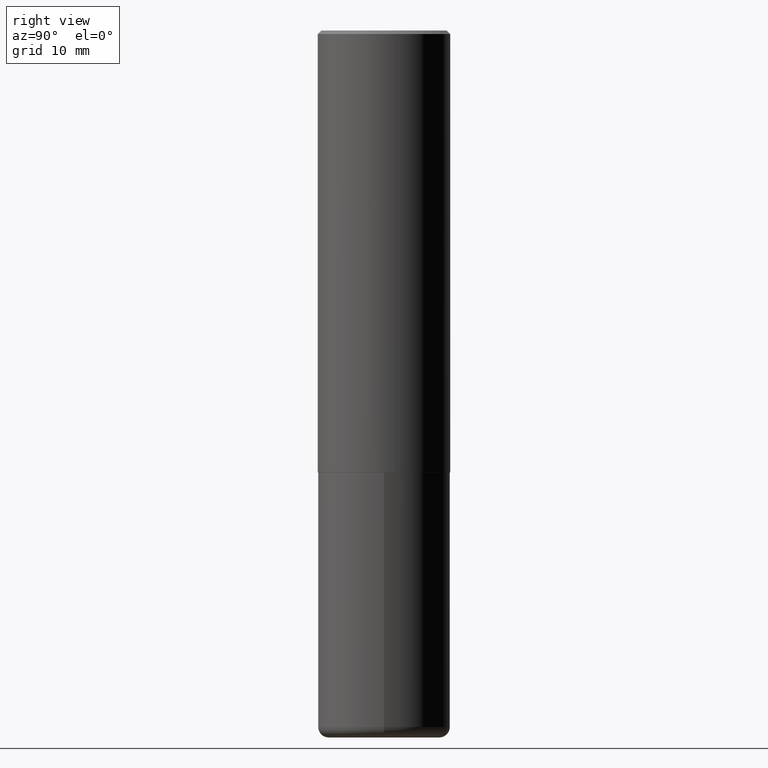
[diagram: clean part render]
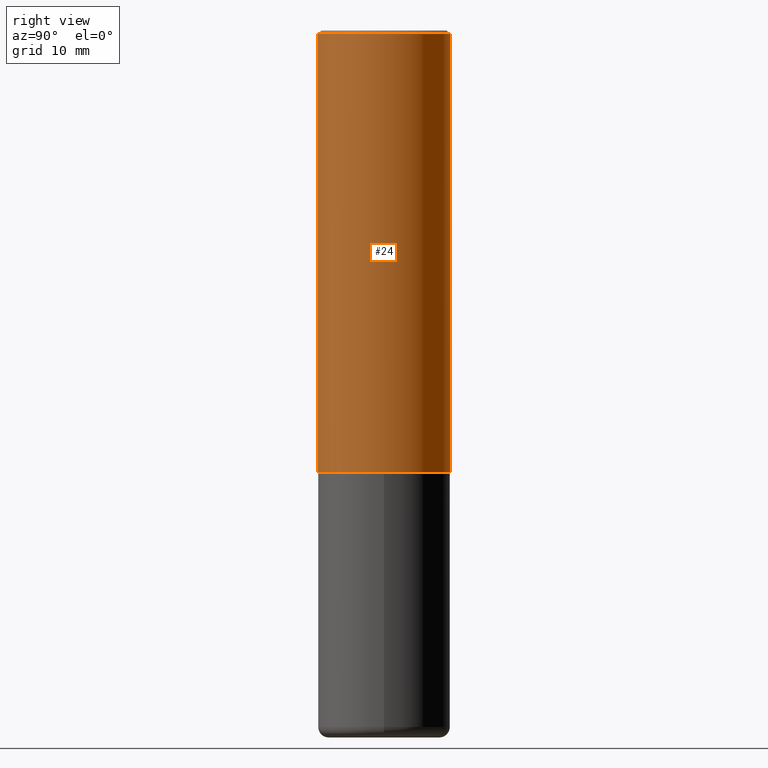
[diagram: same view with one face highlighted and labeled with its STEP entity id]
A machine part, right view. The second image highlights one B-rep face of the part: STEP entity #24.
In plain terms, the highlighted cylindrical surface (partial cylindrical patch) has radius 9.525 mm, axis along (-0, 0, 1).
Its self-contained STEP definition (entity closure, byte-faithful):
#11 = EDGE_CURVE ( 'NONE', #366, #172, #68, .T. ) ;
#12 = AXIS2_PLACEMENT_3D ( 'NONE', #213, #237, #341 ) ;
#16 = EDGE_CURVE ( 'NONE', #314, #366, #408, .T. ) ;
#22 = DIRECTION ( 'NONE',  ( -2.444544534276841438E-29, 3.492804948822114088E-15, 1.000000000000000000 ) ) ;
#24 = ADVANCED_FACE ( 'NONE', ( #147 ), #82, .T. ) ;
#26 = ORIENTED_EDGE ( 'NONE', *, *, #11, .F. ) ;
#39 = DIRECTION ( 'NONE',  ( -2.444544534276841158E-29, 3.492804948822114482E-15, 1.000000000000000000 ) ) ;
#68 = CIRCLE ( 'NONE', #191, 0.3750000000000000555 ) ;
#76 = VECTOR ( 'NONE', #115, 39.37007874015748143 ) ;
#78 = EDGE_CURVE ( 'NONE', #314, #223, #234, .T. ) ;
#82 = CYLINDRICAL_SURFACE ( 'NONE', #12, 0.3750000000000001665 ) ;
#93 = VECTOR ( 'NONE', #39, 39.37007874015748143 ) ;
#110 = CARTESIAN_POINT ( 'NONE',  ( 4.889089068553703440E-31, -6.985609897644257463E-17, -0.02000000000000008715 ) ) ;
#113 = CARTESIAN_POINT ( 'NONE',  ( -2.618611004132290852E-15, -0.3750000000000090483, -2.498999999999998778 ) ) ;
#115 = DIRECTION ( 'NONE',  ( -2.444544534276841158E-29, 3.492804948822114482E-15, 1.000000000000000000 ) ) ;
#142 = ORIENTED_EDGE ( 'NONE', *, *, #78, .T. ) ;
#147 = FACE_OUTER_BOUND ( 'NONE', #302, .T. ) ;
#172 = VERTEX_POINT ( 'NONE', #359 ) ;
#188 = CARTESIAN_POINT ( 'NONE',  ( 2.664535259100408040E-15, 0.3749999999999915623, -2.499000000000000998 ) ) ;
#191 = AXIS2_PLACEMENT_3D ( 'NONE', #110, #346, #216 ) ;
#212 = EDGE_CURVE ( 'NONE', #223, #172, #259, .T. ) ;
#213 = CARTESIAN_POINT ( 'NONE',  ( 0.000000000000000000, 0.000000000000000000, 0.000000000000000000 ) ) ;
#216 = DIRECTION ( 'NONE',  ( -6.982962677686265922E-15, -1.000000000000000000, 3.494488891895536035E-15 ) ) ;
#223 = VERTEX_POINT ( 'NONE', #188 ) ;
#234 = CIRCLE ( 'NONE', #247, 0.3750000000000002776 ) ;
#237 = DIRECTION ( 'NONE',  ( -2.444544534276841438E-29, 3.492804948822114088E-15, 1.000000000000000000 ) ) ;
#247 = AXIS2_PLACEMENT_3D ( 'NONE', #310, #22, #278 ) ;
#259 = LINE ( 'NONE', #417, #93 ) ;
#278 = DIRECTION ( 'NONE',  ( -6.982962677686266711E-15, -1.000000000000000000, 2.913971193241878794E-15 ) ) ;
#298 = ORIENTED_EDGE ( 'NONE', *, *, #212, .T. ) ;
#302 = EDGE_LOOP ( 'NONE', ( #142, #298, #26, #364 ) ) ;
#310 = CARTESIAN_POINT ( 'NONE',  ( 6.108916791157826464E-29, -8.728519567106462304E-15, -2.498999999999999666 ) ) ;
#314 = VERTEX_POINT ( 'NONE', #113 ) ;
#341 = DIRECTION ( 'NONE',  ( -6.982962677686266711E-15, -1.000000000000000000, 3.492804948822114482E-15 ) ) ;
#346 = DIRECTION ( 'NONE',  ( -2.444544534276841438E-29, 3.492804948822114088E-15, 1.000000000000000000 ) ) ;
#359 = CARTESIAN_POINT ( 'NONE',  ( 2.618611004132350411E-15, 0.3749999999999999445, -0.02000000000000139513 ) ) ;
#364 = ORIENTED_EDGE ( 'NONE', *, *, #16, .F. ) ;
#366 = VERTEX_POINT ( 'NONE', #400 ) ;
#375 = CARTESIAN_POINT ( 'NONE',  ( -2.618611004132351200E-15, -0.3750000000000001665, 1.309801855808293473E-15 ) ) ;
#400 = CARTESIAN_POINT ( 'NONE',  ( -2.572686749164323547E-15, -0.3750000000000001110, -0.01999999999999877570 ) ) ;
#408 = LINE ( 'NONE', #375, #76 ) ;
#417 = CARTESIAN_POINT ( 'NONE',  ( 2.664535259100376486E-15, 0.3750000000000001665, -1.309801855808293473E-15 ) ) ;